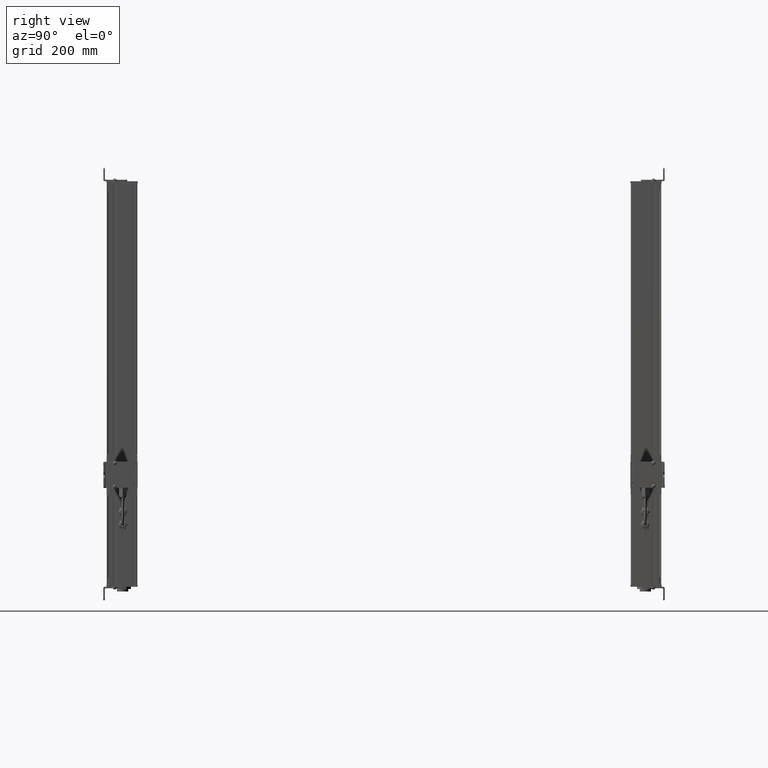
[diagram: clean part render]
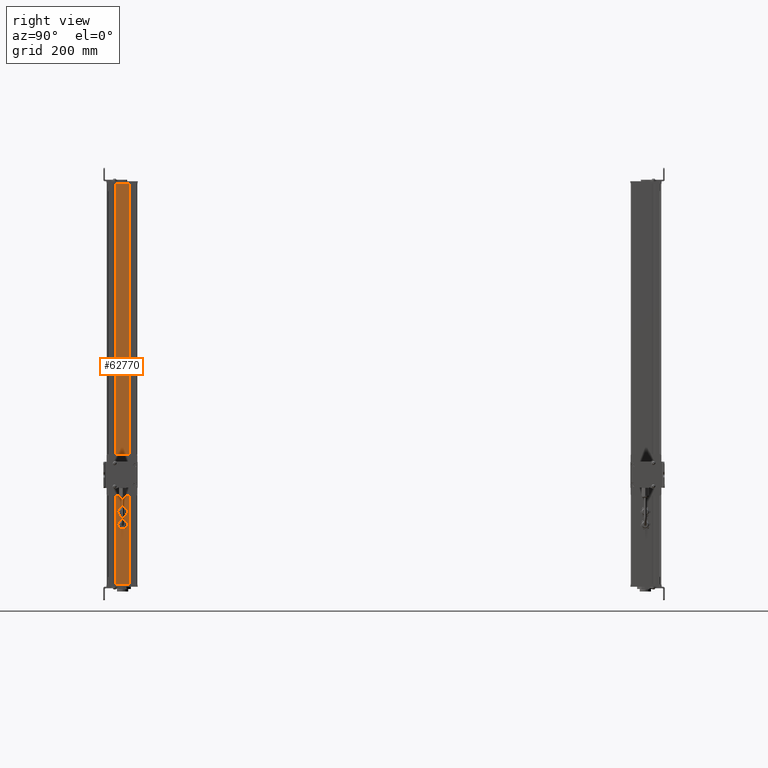
[diagram: same view with one face highlighted and labeled with its STEP entity id]
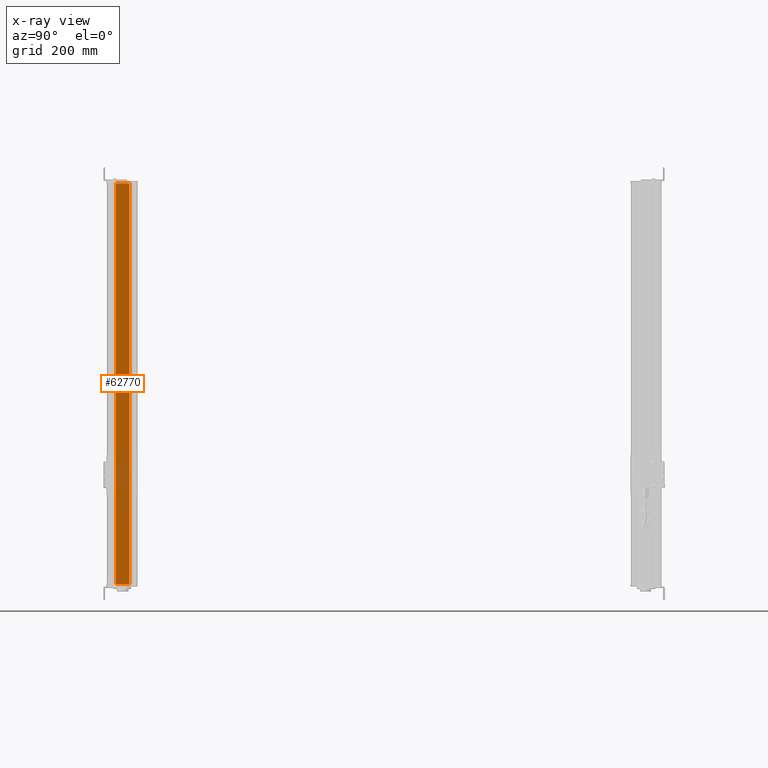
[diagram: x-ray of the same camera — body ghosted, the highlighted face saturated]
A machine part, right view. The second image highlights one B-rep face of the part: STEP entity #62770.
The next image is the same camera in x-ray: the body ghosted, the highlighted face saturated — about 7% of this face is hidden behind the body in this view.
In plain terms, the highlighted planar face has unit normal (1, 0, 0).
Its self-contained STEP definition (entity closure, byte-faithful):
#62031=CARTESIAN_POINT('Axis2P3D Location',(666.195883662,171.710394004,0.)) ;
#62723=CARTESIAN_POINT('Vertex',(666.195883661,138.767790275,0.)) ;
#62726=CARTESIAN_POINT('Line Origine',(666.195883661,138.767790275,406.)) ;
#62730=CARTESIAN_POINT('Vertex',(666.195883661,138.767790275,812.)) ;
#62745=CARTESIAN_POINT('Line Origine',(666.195883662,152.38909214,0.)) ;
#62749=CARTESIAN_POINT('Vertex',(666.195883662,166.010394005,0.)) ;
#62752=CARTESIAN_POINT('Line Origine',(666.195883662,166.010394005,406.)) ;
#62756=CARTESIAN_POINT('Vertex',(666.195883662,166.010394005,812.)) ;
#62759=CARTESIAN_POINT('Line Origine',(666.195883662,152.38909214,812.)) ;
#62032=DIRECTION('Axis2P3D Direction',(1.,0.,0.)) ;
#62033=DIRECTION('Axis2P3D XDirection',(0.,1.,0.)) ;
#62727=DIRECTION('Vector Direction',(0.,0.,1.)) ;
#62746=DIRECTION('Vector Direction',(0.,1.,0.)) ;
#62753=DIRECTION('Vector Direction',(0.,0.,1.)) ;
#62760=DIRECTION('Vector Direction',(0.,1.,0.)) ;
#62034=AXIS2_PLACEMENT_3D('Plane Axis2P3D',#62031,#62032,#62033) ;
#62765=ORIENTED_EDGE('',*,*,#62732,.F.) ;
#62766=ORIENTED_EDGE('',*,*,#62751,.T.) ;
#62767=ORIENTED_EDGE('',*,*,#62758,.T.) ;
#62768=ORIENTED_EDGE('',*,*,#62763,.F.) ;
#62728=VECTOR('Line Direction',#62727,1.) ;
#62747=VECTOR('Line Direction',#62746,1.) ;
#62754=VECTOR('Line Direction',#62753,1.) ;
#62761=VECTOR('Line Direction',#62760,1.) ;
#62770=ADVANCED_FACE('Body.2',(#62769),#62035,.T.) ;
#62732=EDGE_CURVE('',#62724,#62731,#62729,.T.) ;
#62751=EDGE_CURVE('',#62724,#62750,#62748,.T.) ;
#62758=EDGE_CURVE('',#62750,#62757,#62755,.T.) ;
#62763=EDGE_CURVE('',#62731,#62757,#62762,.T.) ;
#62764=EDGE_LOOP('',(#62765,#62766,#62767,#62768)) ;
#62769=FACE_OUTER_BOUND('',#62764,.T.) ;
#62729=LINE('Line',#62726,#62728) ;
#62748=LINE('Line',#62745,#62747) ;
#62755=LINE('Line',#62752,#62754) ;
#62762=LINE('Line',#62759,#62761) ;
#62035=PLANE('Plane',#62034) ;
#62724=VERTEX_POINT('',#62723) ;
#62731=VERTEX_POINT('',#62730) ;
#62750=VERTEX_POINT('',#62749) ;
#62757=VERTEX_POINT('',#62756) ;